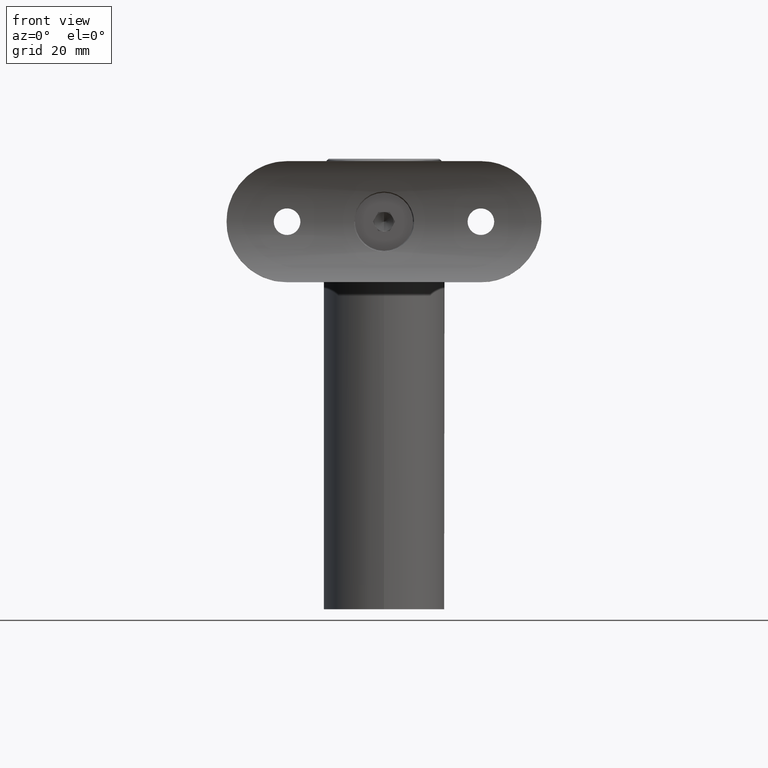
[diagram: clean part render]
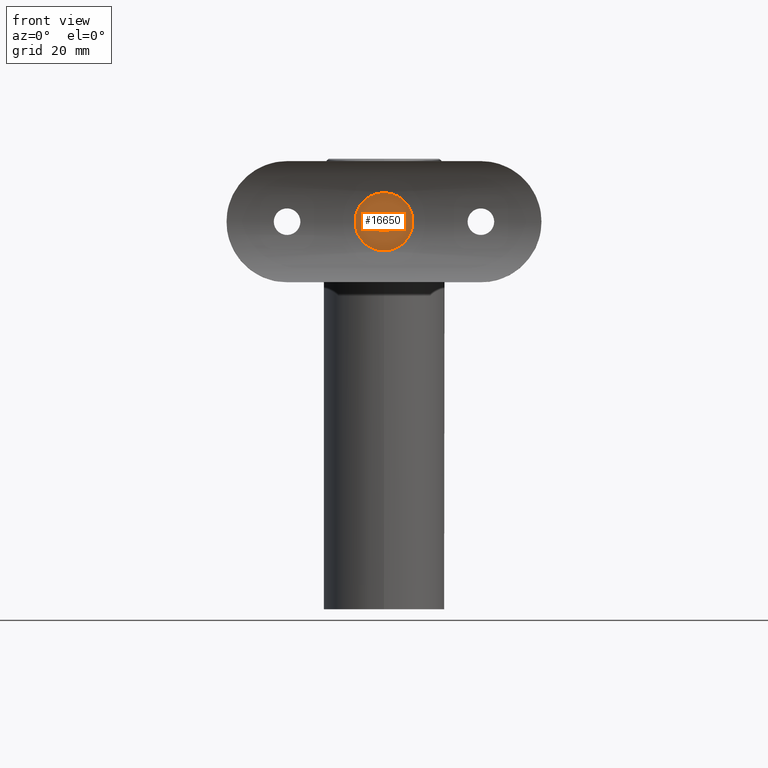
[diagram: same view with one face highlighted and labeled with its STEP entity id]
A machine part, front view. The second image highlights one B-rep face of the part: STEP entity #16650.
In plain terms, the highlighted planar face has unit normal (0, -1, 0).
Its self-contained STEP definition (entity closure, byte-faithful):
#219 = DIRECTION ( 'NONE',  ( -0.4999999999999997780, 0.8660254037844387076, 0.000000000000000000 ) ) ;
#304 = CARTESIAN_POINT ( 'NONE',  ( 1.154700538379250796, -2.000000000000000000, -0.000000000000000000 ) ) ;
#683 = CARTESIAN_POINT ( 'NONE',  ( -2.309401076758502924, 8.267202313460732093E-16, 0.000000000000000000 ) ) ;
#688 = CARTESIAN_POINT ( 'NONE',  ( 0.000000000000000000, 1.499759782661858265E-31, -1.224646799147353454E-15 ) ) ;
#820 = CARTESIAN_POINT ( 'NONE',  ( 2.309401076758502924, 4.792129444551933447E-16, 0.000000000000000000 ) ) ;
#907 = ORIENTED_EDGE ( 'NONE', *, *, #1355, .F. ) ;
#1016 = VERTEX_POINT ( 'NONE', #16268 ) ;
#1285 = AXIS2_PLACEMENT_3D ( 'NONE', #6757, #13004, #17641 ) ;
#1355 = EDGE_CURVE ( 'NONE', #6831, #5440, #10394, .T. ) ;
#1597 = CARTESIAN_POINT ( 'NONE',  ( 1.154700538379251684, 1.999999999999999556, 0.000000000000000000 ) ) ;
#2027 = DIRECTION ( 'NONE',  ( 0.5000000000000001110, -0.8660254037844385966, 0.000000000000000000 ) ) ;
#2387 = CIRCLE ( 'NONE', #2731, 6.000000000000000000 ) ;
#2413 = DIRECTION ( 'NONE',  ( 0.000000000000000000, 1.000000000000000000, 1.224646799147353700E-16 ) ) ;
#2731 = AXIS2_PLACEMENT_3D ( 'NONE', #688, #15843, #2413 ) ;
#3024 = ORIENTED_EDGE ( 'NONE', *, *, #16395, .F. ) ;
#3202 = DIRECTION ( 'NONE',  ( -0.000000000000000000, 1.224646799147353454E-16, -1.000000000000000000 ) ) ;
#3787 = CARTESIAN_POINT ( 'NONE',  ( -1.154700538379250796, 2.000000000000000000, 0.000000000000000000 ) ) ;
#3946 = VECTOR ( 'NONE', #5236, 1000.000000000000114 ) ;
#4043 = DIRECTION ( 'NONE',  ( -0.5000000000000001110, -0.8660254037844385966, -0.000000000000000000 ) ) ;
#4200 = EDGE_CURVE ( 'NONE', #11982, #13912, #4638, .T. ) ;
#4236 = ORIENTED_EDGE ( 'NONE', *, *, #7751, .T. ) ;
#4291 = CARTESIAN_POINT ( 'NONE',  ( -2.309401076758502480, 1.734723475976807094E-15, -6.123233995736766282E-16 ) ) ;
#4638 = LINE ( 'NONE', #683, #3946 ) ;
#5236 = DIRECTION ( 'NONE',  ( 0.5000000000000003331, 0.8660254037844384856, 0.000000000000000000 ) ) ;
#5259 = VECTOR ( 'NONE', #2027, 1000.000000000000114 ) ;
#5406 = LINE ( 'NONE', #17804, #7750 ) ;
#5440 = VERTEX_POINT ( 'NONE', #10241 ) ;
#5563 = CIRCLE ( 'NONE', #1285, 6.000000000000000000 ) ;
#5925 = FACE_BOUND ( 'NONE', #12050, .T. ) ;
#6053 = DIRECTION ( 'NONE',  ( 0.000000000000000000, 1.000000000000000000, 1.224646799147353454E-16 ) ) ;
#6687 = LINE ( 'NONE', #8056, #5259 ) ;
#6757 = CARTESIAN_POINT ( 'NONE',  ( 0.000000000000000000, 1.499759782661858265E-31, -1.224646799147353454E-15 ) ) ;
#6831 = VERTEX_POINT ( 'NONE', #14348 ) ;
#6845 = VECTOR ( 'NONE', #10876, 1000.000000000000000 ) ;
#7040 = ORIENTED_EDGE ( 'NONE', *, *, #16862, .T. ) ;
#7315 = CARTESIAN_POINT ( 'NONE',  ( -1.154700538379250796, 2.000000000000000000, 0.000000000000000000 ) ) ;
#7690 = CARTESIAN_POINT ( 'NONE',  ( 0.000000000000000000, 6.000000000000000000, 1.224646799147354440E-16 ) ) ;
#7750 = VECTOR ( 'NONE', #4043, 1000.000000000000114 ) ;
#7751 = EDGE_CURVE ( 'NONE', #8753, #1016, #5563, .T. ) ;
#8056 = CARTESIAN_POINT ( 'NONE',  ( 1.154700538379251684, 1.999999999999999556, 0.000000000000000000 ) ) ;
#8144 = VECTOR ( 'NONE', #219, 1000.000000000000114 ) ;
#8753 = VERTEX_POINT ( 'NONE', #18121 ) ;
#9636 = EDGE_CURVE ( 'NONE', #5440, #11982, #14307, .T. ) ;
#10191 = EDGE_LOOP ( 'NONE', ( #4236, #7040 ) ) ;
#10241 = CARTESIAN_POINT ( 'NONE',  ( -1.154700538379251462, -2.000000000000000000, 0.000000000000000000 ) ) ;
#10394 = LINE ( 'NONE', #304, #6845 ) ;
#10678 = PLANE ( 'NONE',  #12479 ) ;
#10876 = DIRECTION ( 'NONE',  ( -1.000000000000000000, 0.000000000000000000, 0.000000000000000000 ) ) ;
#11940 = DIRECTION ( 'NONE',  ( 1.000000000000000000, -1.877893248421449775E-16, 0.000000000000000000 ) ) ;
#11982 = VERTEX_POINT ( 'NONE', #4291 ) ;
#12050 = EDGE_LOOP ( 'NONE', ( #19164, #907, #15631, #15398, #3024, #15683 ) ) ;
#12188 = EDGE_CURVE ( 'NONE', #18705, #12755, #6687, .T. ) ;
#12312 = LINE ( 'NONE', #7315, #17549 ) ;
#12479 = AXIS2_PLACEMENT_3D ( 'NONE', #7690, #3202, #6053 ) ;
#12505 = CARTESIAN_POINT ( 'NONE',  ( -1.154700538379251462, -2.000000000000000000, 0.000000000000000000 ) ) ;
#12755 = VERTEX_POINT ( 'NONE', #820 ) ;
#13004 = DIRECTION ( 'NONE',  ( -0.000000000000000000, 1.224646799147353454E-16, -1.000000000000000000 ) ) ;
#13912 = VERTEX_POINT ( 'NONE', #3787 ) ;
#14307 = LINE ( 'NONE', #12505, #8144 ) ;
#14348 = CARTESIAN_POINT ( 'NONE',  ( 1.154700538379250796, -2.000000000000000000, -0.000000000000000000 ) ) ;
#15398 = ORIENTED_EDGE ( 'NONE', *, *, #12188, .F. ) ;
#15631 = ORIENTED_EDGE ( 'NONE', *, *, #19329, .F. ) ;
#15683 = ORIENTED_EDGE ( 'NONE', *, *, #4200, .F. ) ;
#15843 = DIRECTION ( 'NONE',  ( -0.000000000000000000, 1.224646799147353454E-16, -1.000000000000000000 ) ) ;
#16268 = CARTESIAN_POINT ( 'NONE',  ( 7.347880794884119736E-16, -6.000000000000000000, -1.959434878635765526E-15 ) ) ;
#16395 = EDGE_CURVE ( 'NONE', #13912, #18705, #12312, .T. ) ;
#16590 = FACE_OUTER_BOUND ( 'NONE', #10191, .T. ) ;
#16650 = ADVANCED_FACE ( 'NONE', ( #5925, #16590 ), #10678, .T. ) ;
#16862 = EDGE_CURVE ( 'NONE', #1016, #8753, #2387, .T. ) ;
#17549 = VECTOR ( 'NONE', #11940, 1000.000000000000000 ) ;
#17641 = DIRECTION ( 'NONE',  ( 0.000000000000000000, 1.000000000000000000, 1.224646799147353700E-16 ) ) ;
#17804 = CARTESIAN_POINT ( 'NONE',  ( 2.309401076758502924, 4.792129444551933447E-16, 0.000000000000000000 ) ) ;
#18121 = CARTESIAN_POINT ( 'NONE',  ( 0.000000000000000000, 6.000000000000000000, -4.898587196589412829E-16 ) ) ;
#18705 = VERTEX_POINT ( 'NONE', #1597 ) ;
#19164 = ORIENTED_EDGE ( 'NONE', *, *, #9636, .F. ) ;
#19329 = EDGE_CURVE ( 'NONE', #12755, #6831, #5406, .T. ) ;